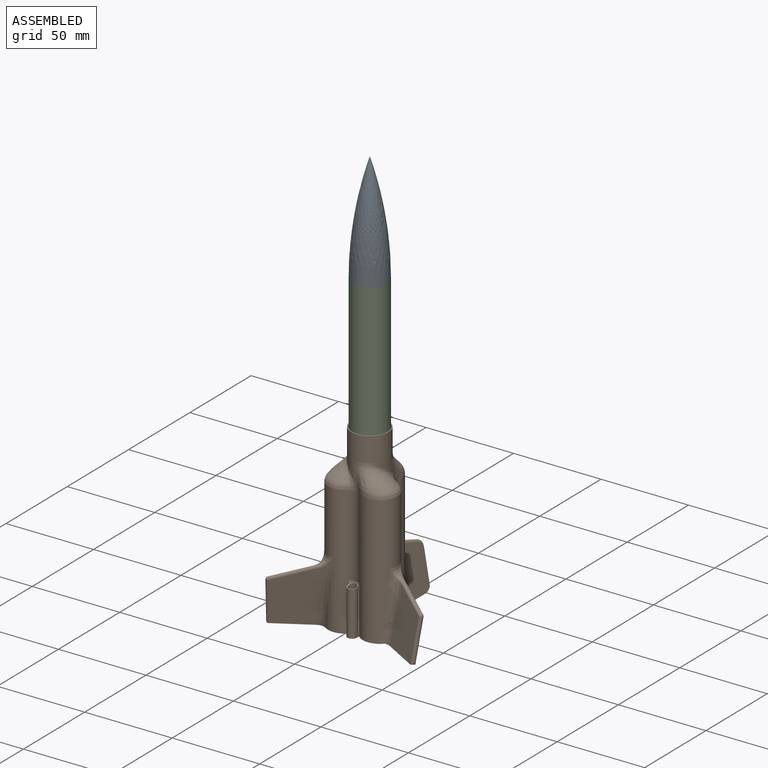
[diagram: assembled view]
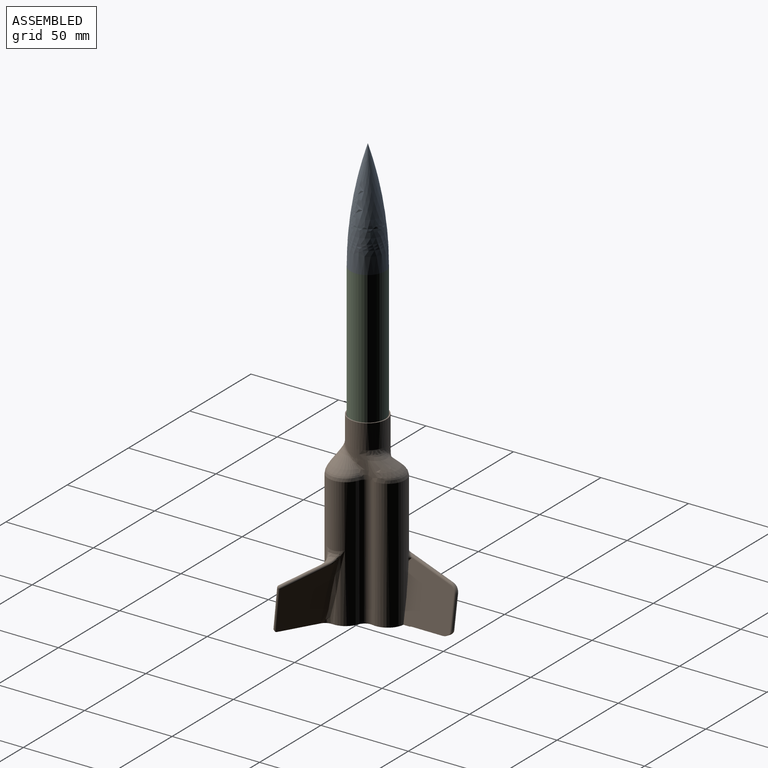
[diagram: assembled view, second angle]
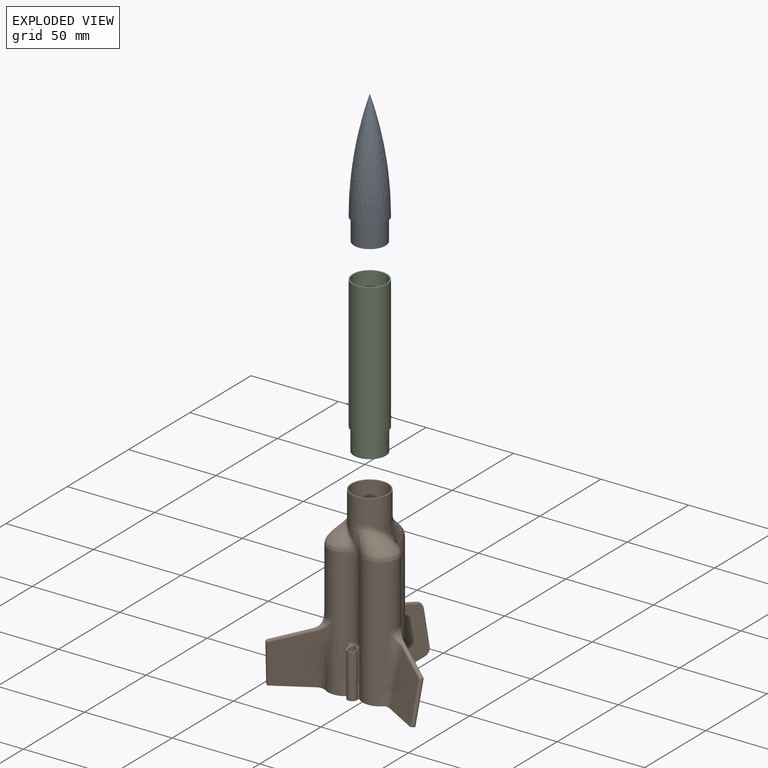
[diagram: exploded view]
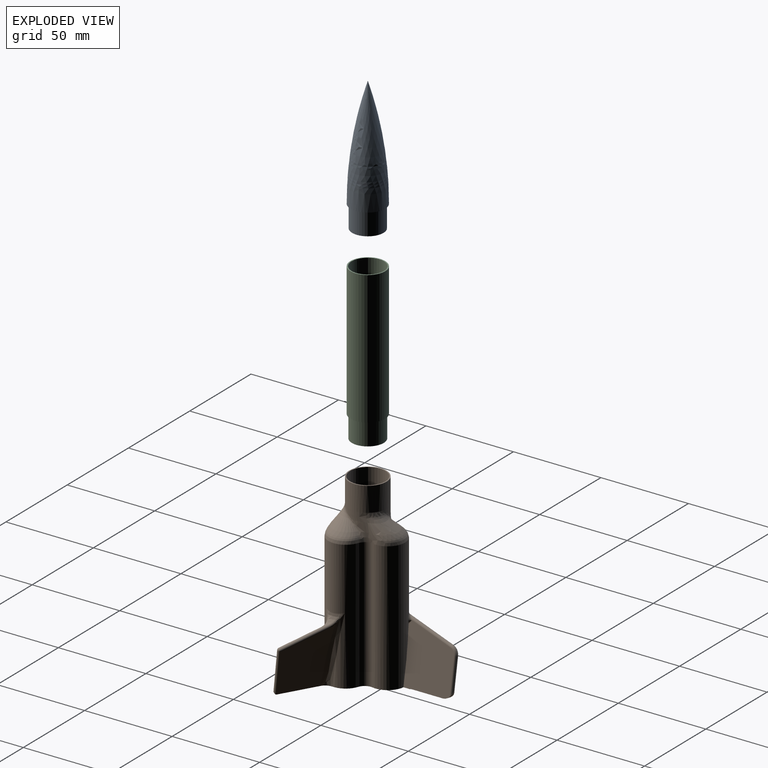
[diagram: exploded view, second angle]
ASSEMBLY  parts=3 mates=2
PART A: 14 faces, bbox 20x20x76.2 mm
  f0: revolved ~56.86x18.47mm, area 2156.1mm2, adj f6
  f1: cylinder r=8.34mm len=16.69mm, axis (0,0,-1), area 721.1mm2, adj f2,f6,f9,f10,f11,f12,f13
  f2: plane 17.96x17.96mm, normal (0,0,-1), area 79.4mm2, adj f1,f3,f7,f8,f10,f11,f12,f13
  f3: cylinder r=8.98mm len=17.96mm, axis (0,0,-1), area 716.5mm2, adj f2,f4
  f4: plane 19.84x19.84mm, normal (0,0,-1), area 55.8mm2, adj f3,f5
  f5: revolved ~63.5x19.84mm, area 2676.7mm2, adj f4
  f6: torus R=6.69mm, axis (0,0,-1), area 126.4mm2, adj f0,f1
  f7: plane 13.2x6.35mm, normal (0,1,0), area 83.8mm2, adj f2,f9,f11,f12
  f8: plane 13.2x6.35mm, normal (0,-1,0), area 83.8mm2, adj f2,f9,f10,f13
  f9: plane 16.69x5.99mm, normal (0,0,1), area 44.9mm2, adj f1,f7,f8,f10,f11,f12,f13
  f10: cylinder r=1.27mm len=6.35mm, axis (0,0,-1), area 15.6mm2, adj f1,f2,f8,f9
  f11: cylinder r=1.27mm len=6.35mm, axis (0,0,-1), area 15.6mm2, adj f1,f2,f7,f9
  f12: cylinder r=1.27mm len=6.35mm, axis (0,0,-1), area 15.6mm2, adj f1,f2,f7,f9
  f13: cylinder r=1.27mm len=6.35mm, axis (0,0,-1), area 15.6mm2, adj f1,f2,f8,f9
PART B: 78 faces, bbox 93.8x84.4x110.4 mm
  f0: cylinder r=5.08mm len=46.36mm, axis (0,0,-1), area 339.5mm2, adj f8,f10,f21,f77
  f1: plane 17.34x1.25mm, normal (0.17,0,-0.98), area 21.9mm2, adj f7,f39,f50,f51
  f2: plane 35.7x31.28mm, normal (-0.98,0,-0.17), area 780.5mm2, adj f7,f12,f51,f68,f69,f70,f71
  f3: plane 23.31x17.22mm, normal (-0.09,0.15,-0.98), area 35.5mm2, adj f7,f10,f41,f48,f54
  f4: plane 35x28.15mm, normal (0.49,-0.85,-0.17), area 688.1mm2, adj f7,f47,f53,f55,f57
  f5: plane 25.57x14.22mm, normal (-0.09,-0.15,-0.98), area 35.5mm2, adj f7,f8,f43,f45,f62
  f6: plane 35x24.37mm, normal (0.49,0.85,-0.17), area 688.1mm2, adj f7,f44,f61,f63,f65
  f7: plane 84.06x70.73mm, normal (0,0,-1), area 278.8mm2, adj f1,f2,f3,f4,f5,f6,f8,f9
  f8: cylinder r=9.92mm len=74.3mm, axis (0,0,-1), area 2243.4mm2, adj f0,f5,f7,f21,f31,f44,f45,f46
  f9: cylinder r=9.28mm len=74.3mm, axis (0,0,-1), area 4324.8mm2, adj f7,f19,f23,f33,f34
  f10: cylinder r=9.92mm len=74.3mm, axis (0,0,-1), area 2243.4mm2, adj f0,f3,f7,f21,f32,f47,f48,f49
  f11: cylinder r=9.28mm len=74.3mm, axis (0,0,-1), area 4324.8mm2, adj f7,f20,f23,f35,f36
  f12: cylinder r=9.92mm len=74.3mm, axis (0,0,-1), area 2495.1mm2, adj f2,f7,f21,f31,f32,f39,f68
  f13: cylinder r=9.28mm len=74.3mm, axis (0,0,-1), area 4324.8mm2, adj f7,f18,f23,f37,f38
  f14: cylinder r=10.12mm len=20.24mm, axis (0,0,-1), area 889.3mm2, adj f16,f17
  f15: cylinder r=10.71mm len=21.41mm, axis (0,0,-1), area 940.6mm2, adj f16,f21
  f16: plane 21.41x21.41mm, normal (0,0,1), area 38.2mm2, adj f14,f15
  f17: plane 20.93x20.93mm, normal (0,0,1), area 112.4mm2, adj f14,f22
  f18: plane 25.2x21.38mm, normal (0,0,-1), area 66.1mm2, adj f13,f22
  f19: plane 21.39x20.59mm, normal (0,0,-1), area 66.2mm2, adj f9,f22
  f20: plane 21.39x20.58mm, normal (0,0,-1), area 66mm2, adj f11,f22
  f21: bspline ~39.38x36.78mm, area 1570.3mm2, adj f0,f8,f10,f12,f15,f31,f32
  f22: offset ~44.57x41.95mm, area 1206.8mm2, adj f17,f18,f19,f20,f23
  f23: plane 17.9x15.51mm, normal (0,0,1), area 38.3mm2, adj f9,f11,f13,f22,f24,f29,f30
  f24: cylinder r=9.92mm len=74.3mm, axis (0,0,-1), area 671.6mm2, adj f7,f23,f26,f27,f28,f29,f30
  f25: cylinder r=2.02mm len=2.54mm, axis (0,0,-1), area 3.9mm2, adj f7,f27,f29,f30
  f26: cylinder r=2.02mm len=2.54mm, axis (0,0,-1), area 3.9mm2, adj f7,f24,f27,f30
  f27: plane 4.01x3.62mm, normal (0,0,1), area 10.3mm2, adj f24,f25,f26,f28,f29,f30
  f28: cylinder r=2.02mm len=2.54mm, axis (0,0,-1), area 3.9mm2, adj f7,f24,f27,f29
  f29: cylinder r=9.92mm len=74.3mm, axis (0,0,-1), area 671.6mm2, adj f7,f23,f24,f25,f27,f28,f30
  f30: cylinder r=9.92mm len=74.3mm, axis (0,0,-1), area 671.6mm2, adj f7,f23,f24,f25,f26,f27,f29
  f31: cylinder r=5.08mm len=74.3mm, axis (0,0,-1), area 544.1mm2, adj f7,f8,f12,f21
  f32: cylinder r=5.08mm len=74.3mm, axis (0,0,1), area 544.1mm2, adj f7,f10,f12,f21
  f33: cylinder r=3.04mm len=3.34mm, axis (0,0,-1), area 9.5mm2, adj f7,f9,f34
  f34: plane 3.34x1.97mm, normal (0,0,1), area 2.3mm2, adj f9,f33
  f35: cylinder r=3.04mm len=3.34mm, axis (0,0,-1), area 9.5mm2, adj f7,f11,f36
  f36: plane 3.34x1.97mm, normal (0,0,1), area 2.3mm2, adj f11,f35
  f37: cylinder r=3.04mm len=3.85mm, axis (0,0,-1), area 9.5mm2, adj f7,f13,f38
  f38: plane 3.85x0.89mm, normal (0,0,1), area 2.3mm2, adj f13,f37
  f39: plane 33.3x27.61mm, normal (0.98,0,0.17), area 756.4mm2, adj f1,f7,f12,f50,f51,f68,f69,f70
  f40: plane 3.21x2.17mm, normal (-0.19,-0.3,0.93), area 1.1mm2, adj f49,f57,f59
  f41: plane 31.38x21.3mm, normal (-0.49,0.85,0.17), area 603.6mm2, adj f3,f48,f53,f57
  f42: plane 3.09x1.97mm, normal (0.36,-0.02,0.93), area 1.1mm2, adj f46,f65,f67
  f43: plane 31.38x21.86mm, normal (-0.49,-0.85,0.17), area 603.6mm2, adj f5,f45,f61,f65
  f44: bspline ~40.94x11.08mm, area 165.5mm2, adj f6,f7,f8,f60
  f45: bspline ~38.85x9.97mm, area 234.5mm2, adj f5,f8,f43,f66,f67
  f46: bspline ~15.33x5.81mm, area 31.4mm2, adj f8,f42,f60,f63,f66
  f47: bspline ~40.94x11.65mm, area 165.5mm2, adj f4,f7,f10,f52
  f48: bspline ~38.85x11.28mm, area 234.5mm2, adj f3,f10,f41,f58,f59
  f49: bspline ~13.56x8.39mm, area 31.4mm2, adj f10,f40,f52,f55,f58
  f50: bspline ~1.63x1.52mm, area 0.9mm2, adj f1,f7,f39
  f51: cylinder r=5.08mm len=5.44mm, axis (-0.98,0,-0.17), area 14.6mm2, adj f1,f2,f7,f39,f69
  f52: bspline ~6.61x6.51mm, area 4mm2, adj f47,f49,f55
  f53: cylinder r=1.27mm len=24.55mm, axis (0.09,-0.15,0.98), area 95.3mm2, adj f4,f7,f41,f54,f56
  f54: cylinder r=1.27mm len=2.83mm, axis (0.49,-0.85,-0.17), area 2.3mm2, adj f3,f7,f53
  f55: bspline ~4.77x3.04mm, area 5.1mm2, adj f4,f49,f52,f57
  f56: sphere r=1.27mm, area 20.3mm2, adj f53,f57
  f57: cylinder r=1.27mm len=23.31mm, axis (0.85,0.43,0.31), area 95.9mm2, adj f4,f40,f41,f55,f56,f59
  f58: bspline ~6.6x5.95mm, area 5mm2, adj f48,f49,f59
  f59: bspline ~4.82x4.65mm, area 5.9mm2, adj f40,f48,f57,f58
  f60: bspline ~5.8x4.63mm, area 4mm2, adj f44,f46,f63
  f61: cylinder r=1.27mm len=24.55mm, axis (0.09,0.15,0.98), area 95.3mm2, adj f6,f7,f43,f62,f64
  f62: cylinder r=1.27mm len=2.48mm, axis (0.49,0.85,-0.17), area 2.3mm2, adj f5,f7,f61
  f63: bspline ~3.98x3.62mm, area 5.1mm2, adj f6,f46,f60,f65
  f64: sphere r=1.27mm, area 4mm2, adj f61,f65
  f65: cylinder r=1.27mm len=21.98mm, axis (-0.79,0.52,0.31), area 95.9mm2, adj f6,f42,f43,f63,f64,f67
  f66: bspline ~6.6x5.21mm, area 5mm2, adj f45,f46,f67
  f67: bspline ~4.95x2.96mm, area 5.9mm2, adj f42,f45,f65,f66
  f68: bspline ~5.44x4.69mm, area 14mm2, adj f2,f12,f39,f70
  f69: cylinder r=1.27mm len=20.16mm, axis (-0.17,0,0.98), area 73.2mm2, adj f2,f39,f51,f71
  f70: cylinder r=1.27mm len=26.41mm, axis (-0.05,-0.95,0.31), area 103.6mm2, adj f2,f39,f68,f71
  f71: torus R=3.81mm, axis (0.98,0,0.17), area 23mm2, adj f2,f39,f69,f70
  f72: plane 4.58x1.83mm, normal (0,0,1), area 3.2mm2, adj f74,f76,f77
  f73: cylinder r=0.45mm len=27.94mm, axis (0,0,-1), area 31.4mm2, adj f7,f10,f74,f77
  f74: cylinder r=2.73mm len=26.07mm, axis (0,0,-1), area 258.7mm2, adj f7,f72,f73,f75,f77
  f75: cylinder r=0.45mm len=27.94mm, axis (0,0,-1), area 31.4mm2, adj f7,f8,f74,f77
  f76: cylinder r=2.1mm len=25.4mm, axis (0,0,-1), area 334.4mm2, adj f7,f72,f77
  f77: torus R=2.54mm, axis (0,0,1), area 15.1mm2, adj f0,f72,f73,f74,f75,f76
PART C: 14 faces, bbox 21.5x21.5x88.9 mm
  f0: cylinder r=9.28mm len=69.85mm, axis (0,0,-1), area 3848.9mm2, adj f2,f7,f9,f12,f13
  f1: cylinder r=9.92mm len=76.2mm, axis (0,0,-1), area 4748.9mm2, adj f2,f3
  f2: plane 19.84x19.84mm, normal (0,0,1), area 38.3mm2, adj f0,f1
  f3: plane 19.84x19.84mm, normal (0,0,-1), area 48.6mm2, adj f1,f6
  f4: cylinder r=8.47mm len=16.94mm, axis (0,0,-1), area 867.2mm2, adj f5,f7
  f5: plane 18.21x18.21mm, normal (0,0,-1), area 35.1mm2, adj f4,f6
  f6: cylinder r=9.11mm len=18.21mm, axis (0,0,-1), area 726.6mm2, adj f3,f5
  f7: torus R=13.55mm, axis (0,0,1), area 160.1mm2, adj f0,f4
  f8: cylinder r=1.65mm len=23.94mm, axis (0,0,1), area 216.3mm2, adj f12,f13
  f9: cylinder r=4.19mm len=26.67mm, axis (0,0,1), area 227.1mm2, adj f0,f10,f11,f12,f13
  f10: plane 2.66x0.38mm, normal (0,0,-1), area 0.7mm2, adj f9,f13
  f11: plane 2.66x0.38mm, normal (0,0,1), area 0.7mm2, adj f9,f12
  f12: torus R=5.47mm, axis (0,0,-1), area 31mm2, adj f0,f8,f9,f11
  f13: torus R=5.47mm, axis (0,0,-1), area 31mm2, adj f0,f8,f9,f10
PLACE A t=(-0.9,-58.77,-59.36)mm
PLACE B t=(-0.9,-58.77,-64.45)mm
PLACE C t=(-0.9,-58.77,-59.36)mm
MATE fastened C.f0 <-> A.f1  axis (0,0,-1) through (-0.9,-58.77,114.63)mm
MATE fastened B.f14 <-> C.f0  axis (0,0,-1) through (-0.9,-58.77,38.43)mm
